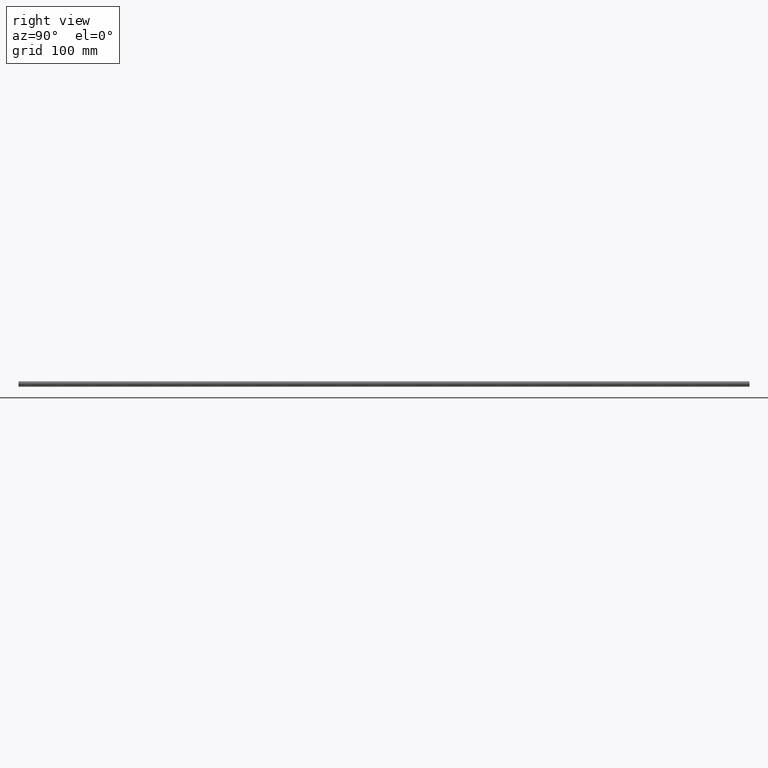
[diagram: clean part render]
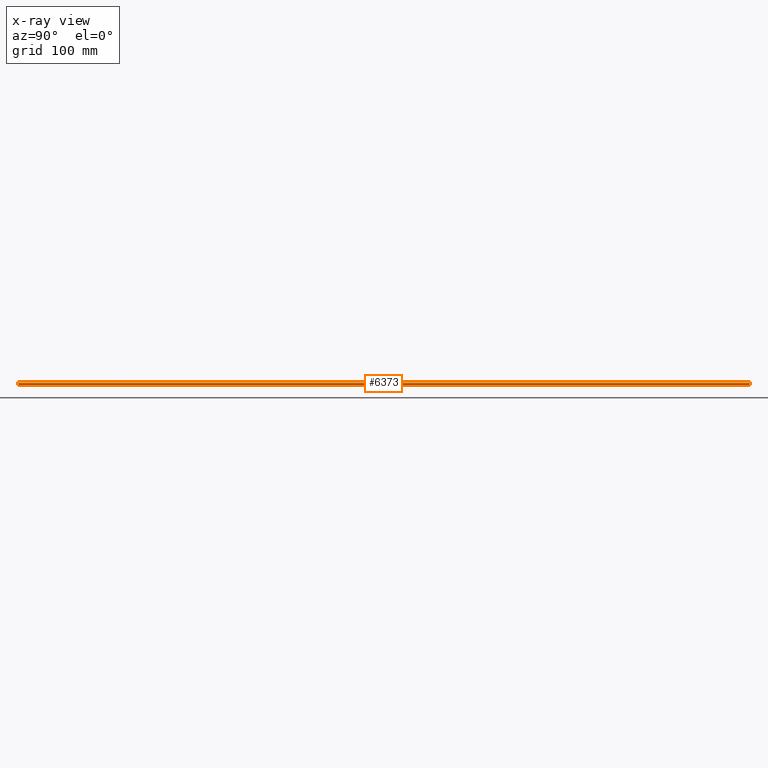
[diagram: x-ray — body ghosted, one internal face saturated and labeled with its STEP entity id]
A machine part, right view, then the same camera in x-ray: the body is ghosted and one INTERNAL B-rep face — a face not visible from any outside direction — is saturated and labeled: STEP entity #6373.
In plain terms, the highlighted cylindrical surface (edge-blend (fillet) strip) has radius 1.75 mm, axis along (0, 1, 0).
Its self-contained STEP definition (entity closure, byte-faithful):
#94 = CARTESIAN_POINT ( 'NONE',  ( 0.0000000000000000000, -18.80000000000000100, 1.749999999999999800 ) ) ;
#583 = LINE ( 'NONE', #94, #823 ) ;
#701 = DIRECTION ( 'NONE',  ( 0.0000000000000000000, 1.000000000000000000, 0.0000000000000000000 ) ) ;
#815 = CIRCLE ( 'NONE', #2964, 1.749999999999999800 ) ;
#823 = VECTOR ( 'NONE', #2388, 1000.000000000000000 ) ;
#934 = EDGE_CURVE ( 'NONE', #7160, #7940, #6735, .T. ) ;
#1169 = EDGE_CURVE ( 'NONE', #6409, #6908, #583, .T. ) ;
#1231 = AXIS2_PLACEMENT_3D ( 'NONE', #6209, #2459, #7725 ) ;
#2255 = CARTESIAN_POINT ( 'NONE',  ( 0.0000000000000000000, 881.2000000000000500, 0.0000000000000000000 ) ) ;
#2388 = DIRECTION ( 'NONE',  ( 0.0000000000000000000, 1.000000000000000000, 0.0000000000000000000 ) ) ;
#2459 = DIRECTION ( 'NONE',  ( 0.0000000000000000000, 1.000000000000000000, 0.0000000000000000000 ) ) ;
#2743 = ORIENTED_EDGE ( 'NONE', *, *, #1169, .F. ) ;
#2840 = CIRCLE ( 'NONE', #2946, 1.749999999999999800 ) ;
#2946 = AXIS2_PLACEMENT_3D ( 'NONE', #5238, #701, #6002 ) ;
#2960 = FACE_OUTER_BOUND ( 'NONE', #5938, .T. ) ;
#2964 = AXIS2_PLACEMENT_3D ( 'NONE', #2255, #7499, #3019 ) ;
#3019 = DIRECTION ( 'NONE',  ( 0.0000000000000000000, 0.0000000000000000000, 1.000000000000000000 ) ) ;
#3151 = CARTESIAN_POINT ( 'NONE',  ( 0.0000000000000000000, 881.2000000000000500, 1.749999999999999800 ) ) ;
#4027 = ORIENTED_EDGE ( 'NONE', *, *, #934, .T. ) ;
#4049 = CARTESIAN_POINT ( 'NONE',  ( 2.143131898507868100E-016, 881.2000000000000500, -1.749999999999999800 ) ) ;
#4749 = VECTOR ( 'NONE', #6401, 1000.000000000000000 ) ;
#5238 = CARTESIAN_POINT ( 'NONE',  ( 0.0000000000000000000, -18.80000000000000100, 0.0000000000000000000 ) ) ;
#5938 = EDGE_LOOP ( 'NONE', ( #8601, #4027, #8535, #2743 ) ) ;
#6002 = DIRECTION ( 'NONE',  ( 0.0000000000000000000, 0.0000000000000000000, 1.000000000000000000 ) ) ;
#6196 = EDGE_CURVE ( 'NONE', #6409, #7160, #2840, .T. ) ;
#6209 = CARTESIAN_POINT ( 'NONE',  ( 0.0000000000000000000, -18.80000000000000100, 0.0000000000000000000 ) ) ;
#6285 = CARTESIAN_POINT ( 'NONE',  ( 2.143131898507868100E-016, -18.80000000000000100, -1.749999999999999800 ) ) ;
#6373 = ADVANCED_FACE ( 'NONE', ( #2960 ), #8689, .T. ) ;
#6401 = DIRECTION ( 'NONE',  ( 0.0000000000000000000, 1.000000000000000000, 0.0000000000000000000 ) ) ;
#6409 = VERTEX_POINT ( 'NONE', #7747 ) ;
#6735 = LINE ( 'NONE', #6285, #4749 ) ;
#6908 = VERTEX_POINT ( 'NONE', #3151 ) ;
#7160 = VERTEX_POINT ( 'NONE', #9558 ) ;
#7499 = DIRECTION ( 'NONE',  ( 0.0000000000000000000, 1.000000000000000000, 0.0000000000000000000 ) ) ;
#7725 = DIRECTION ( 'NONE',  ( 0.0000000000000000000, 0.0000000000000000000, 1.000000000000000000 ) ) ;
#7747 = CARTESIAN_POINT ( 'NONE',  ( 0.0000000000000000000, -18.80000000000000100, 1.749999999999999800 ) ) ;
#7940 = VERTEX_POINT ( 'NONE', #4049 ) ;
#8295 = EDGE_CURVE ( 'NONE', #6908, #7940, #815, .T. ) ;
#8535 = ORIENTED_EDGE ( 'NONE', *, *, #8295, .F. ) ;
#8601 = ORIENTED_EDGE ( 'NONE', *, *, #6196, .T. ) ;
#8689 = CYLINDRICAL_SURFACE ( 'NONE', #1231, 1.749999999999999800 ) ;
#9558 = CARTESIAN_POINT ( 'NONE',  ( 2.143131898507868100E-016, -18.80000000000000100, -1.749999999999999800 ) ) ;